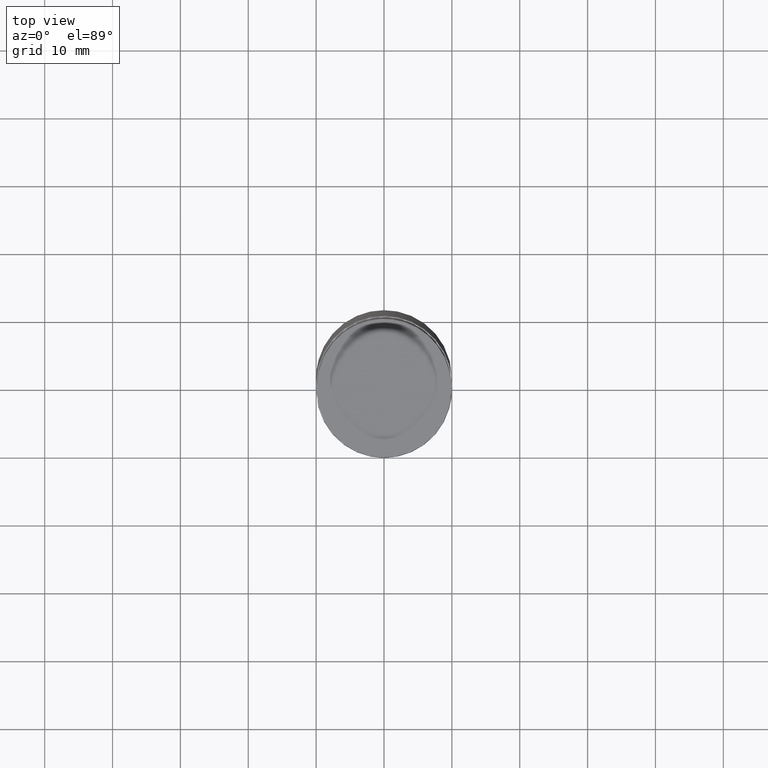
[diagram: clean part render]
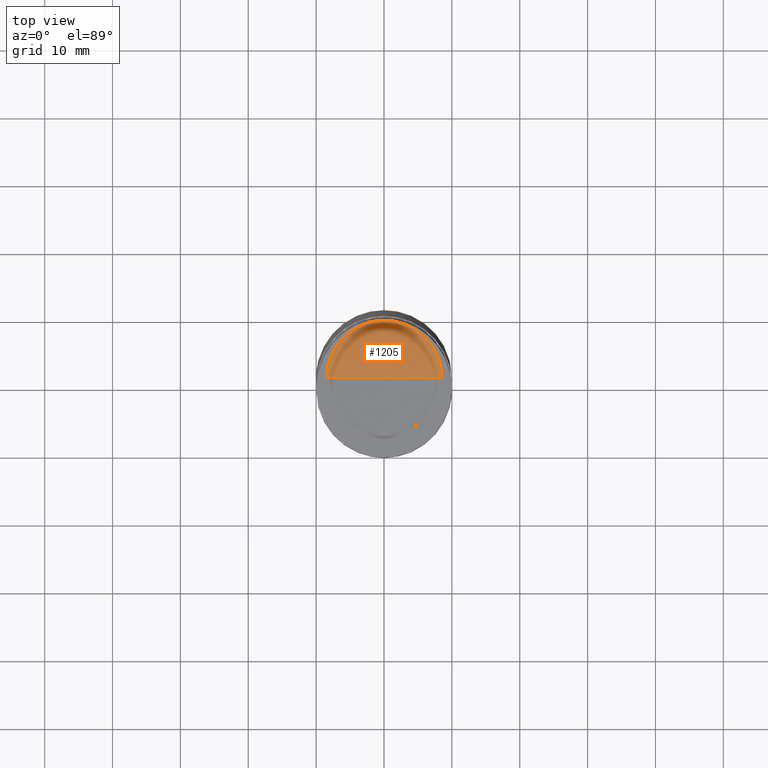
[diagram: same view with one face highlighted and labeled with its STEP entity id]
A machine part, top view. The second image highlights one B-rep face of the part: STEP entity #1205.
In plain terms, the highlighted face is a freeform B-spline surface patch.
Its self-contained STEP definition (entity closure, byte-faithful):
#877=CARTESIAN_POINT('',(8.5,0.0,50.0));
#878=CARTESIAN_POINT('',(8.5,8.5,50.0));
#879=CARTESIAN_POINT('',(0.0,8.5,50.0));
#880=CARTESIAN_POINT('',(-8.5,8.5,50.0));
#881=CARTESIAN_POINT('',(-8.5,0.0,50.0));
#882=CARTESIAN_POINT('',(0.0,0.0,50.0));
#1190=(
BOUNDED_SURFACE()
B_SPLINE_SURFACE(1,2,(
(#877,#878,#879,#880,#881),
(#882,#882,#882,#882,#882)
), .UNSPECIFIED.,.F.,.F.,.F.)
B_SPLINE_SURFACE_WITH_KNOTS((2,2),(3,2,3),(
0.0,1.0),(
0.0,0.5,1.0), .UNSPECIFIED.)
GEOMETRIC_REPRESENTATION_ITEM()
RATIONAL_B_SPLINE_SURFACE(((1.0,0.707106781187,1.0,0.707106781187,1.0),
(1.0,0.707106781187,1.0,0.707106781187,1.0)
))
REPRESENTATION_ITEM('')
SURFACE()
);
#1191=(
BOUNDED_CURVE()
B_SPLINE_CURVE(2,(#881,#880,#879,#878,#877),.UNSPECIFIED.,.F.,.F.)
B_SPLINE_CURVE_WITH_KNOTS((3,2,3),
(0.0,0.5,1.0),.UNSPECIFIED.)
CURVE()
GEOMETRIC_REPRESENTATION_ITEM()
RATIONAL_B_SPLINE_CURVE((1.0,0.707106781187,1.0,0.707106781187,1.0))
REPRESENTATION_ITEM('')
);
#1192=(
BOUNDED_CURVE()
B_SPLINE_CURVE(1,(#877,#882),.UNSPECIFIED.,.F.,.F.)
B_SPLINE_CURVE_WITH_KNOTS((2,2),
(0.0,1.0),.UNSPECIFIED.)
CURVE()
GEOMETRIC_REPRESENTATION_ITEM()
RATIONAL_B_SPLINE_CURVE((1.0,1.0))
REPRESENTATION_ITEM('')
);
#1193=(
BOUNDED_CURVE()
B_SPLINE_CURVE(1,(#882,#881),.UNSPECIFIED.,.F.,.F.)
B_SPLINE_CURVE_WITH_KNOTS((2,2),
(0.0,1.0),.UNSPECIFIED.)
CURVE()
GEOMETRIC_REPRESENTATION_ITEM()
RATIONAL_B_SPLINE_CURVE((1.0,1.0))
REPRESENTATION_ITEM('')
);
#1194=VERTEX_POINT('',#877);
#1195=VERTEX_POINT('',#881);
#1196=VERTEX_POINT('',#882);
#1197=EDGE_CURVE('',#1195,#1194,#1191,.T.);
#1198=EDGE_CURVE('',#1194,#1196,#1192,.T.);
#1199=EDGE_CURVE('',#1196,#1195,#1193,.T.);
#1200=ORIENTED_EDGE('',*,*,#1197,.T.);
#1201=ORIENTED_EDGE('',*,*,#1198,.T.);
#1202=ORIENTED_EDGE('',*,*,#1199,.T.);
#1203=EDGE_LOOP('',(#1200,#1201,#1202));
#1204=FACE_OUTER_BOUND('',#1203,.T.);
#1205=ADVANCED_FACE('',(#1204),#1190,.T.);